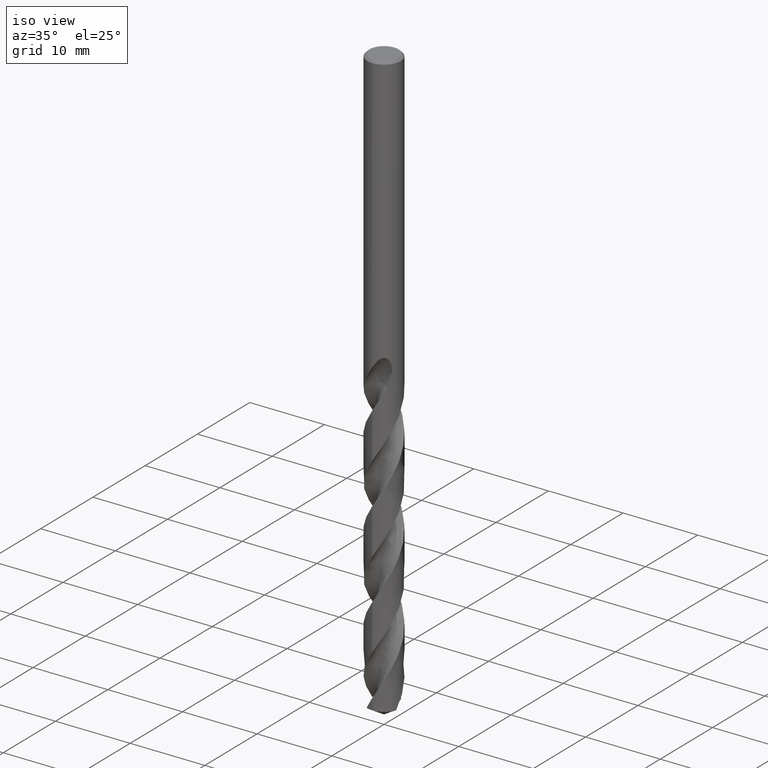
[diagram: clean part render]
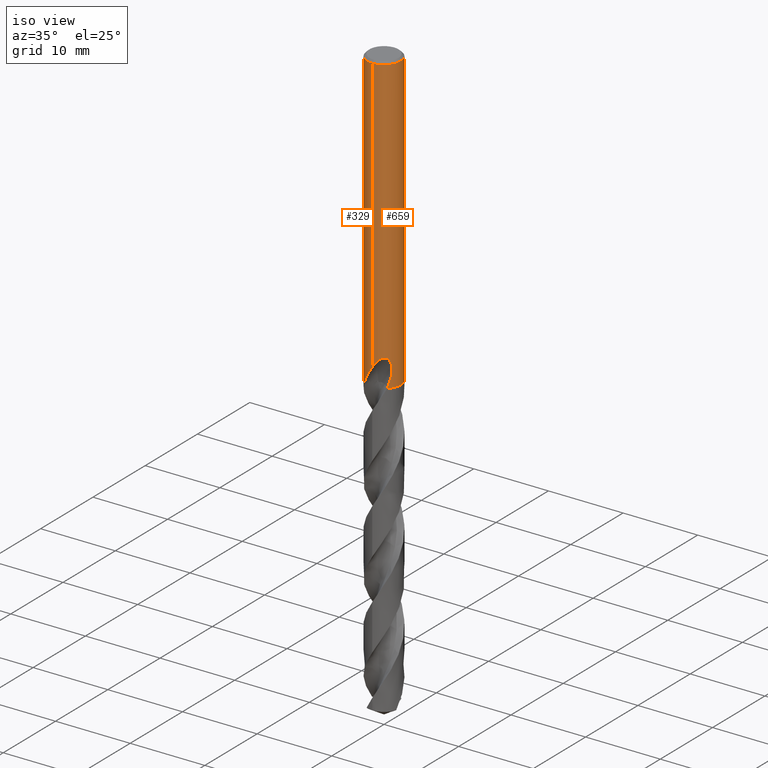
[diagram: same view with one multi-face feature highlighted, each face labeled with its STEP entity id]
A machine part, iso view. The highlighted faces form ONE feature: a constant-radius fillet chain: 2 tangent blend faces with common blend radius 2.25 mm. The faces share edges in the B-rep.
Their STEP definitions:
[1] entity #659 (Cylinder):
#275=VERTEX_POINT('',#774);
#283=VERTEX_POINT('',#782);
#317=VERTEX_POINT('',#821);
#319=EDGE_CURVE('',#373,#633,#823,.T.);
#337=EDGE_CURVE('',#633,#283,#842,.T.);
#349=EDGE_CURVE('',#649,#483,#855,.T.);
#365=EDGE_CURVE('',#317,#499,#874,.T.);
#373=VERTEX_POINT('',#882);
#473=EDGE_CURVE('',#317,#283,#993,.T.);
#479=EDGE_CURVE('',#275,#555,#999,.T.);
#483=VERTEX_POINT('',#1003);
#489=VERTEX_POINT('',#1009);
#499=VERTEX_POINT('',#1020);
#507=VERTEX_POINT('',#1029);
#555=VERTEX_POINT('',#1084);
#571=VERTEX_POINT('',#1101);
#579=EDGE_CURVE('',#625,#695,#1109,.T.);
#599=EDGE_CURVE('',#571,#489,#1130,.T.);
#625=VERTEX_POINT('',#1156);
#633=VERTEX_POINT('',#1165);
#637=EDGE_CURVE('',#489,#649,#1169,.T.);
#645=EDGE_CURVE('',#571,#555,#1178,.T.);
#649=VERTEX_POINT('',#1182);
#659=ADVANCED_FACE('',(#1192),#1193,.T.);
#667=EDGE_CURVE('',#737,#373,#1201,.T.);
#677=EDGE_CURVE('',#507,#499,#1212,.T.);
#681=EDGE_CURVE('',#483,#737,#1216,.T.);
#695=VERTEX_POINT('',#1231);
#725=EDGE_CURVE('',#275,#695,#1265,.T.);
#731=EDGE_CURVE('',#507,#625,#1271,.T.);
#737=VERTEX_POINT('',#1278);
#774=CARTESIAN_POINT('',(1.43136267377216,1.73600141017564,-39.5));
#782=CARTESIAN_POINT('',(-2.60338784749601E-016,2.25,-24.0232688117743));
#821=CARTESIAN_POINT('',(0.0,2.25,-0.300000000000001));
#823=B_SPLINE_CURVE_WITH_KNOTS('',3,(#1567,#1568,#1569,#1570,#1571,#1572,#1573,#1574),.UNSPECIFIED.,.F.,.F.,(4,2,2,4),(0.649712332100866,1.29942466420173,1.61810612988606,1.9367875955704),.UNSPECIFIED.);
#842=B_SPLINE_CURVE_WITH_KNOTS('',3,(#1768,#1769,#1770,#1771,#1772,#1773,#1774,#1775,#1776,#1777,#1778,#1779,#1780,#1781,#1782,#1783,#1784,#1785,#1786,#1787,#1788,#1789,#1790,#1791,#1792,#1793,#1794),.UNSPECIFIED.,.F.,.F.,(4,2,3,2,2,2,2,2,2,2,2,2,4),(-0.546607847444609,-0.273303923722305,0.0,0.273303923722304,0.546607847444609,0.822641546125594,1.09867524480658,1.36979270276528,1.64091016072398,1.91347018473955,2.18603020875512,2.45859023277069,2.73115025678626),.UNSPECIFIED.);
#855=LINE('',#2010,#2011);
#874=CIRCLE('',#2956,2.25);
#882=CARTESIAN_POINT('',(1.33721006514658,1.8095218268014,-23.5150484364821));
#993=LINE('',#5269,#5270);
#999=B_SPLINE_CURVE_WITH_KNOTS('',3,(#5283,#5284,#5285,#5286,#5287,#5288,#5289,#5290,#5291,#5292,#5293,#5294,#5295,#5296,#5297,#5298,#5299,#5300,#5301,#5302,#5303,#5304,#5305,#5306,#5307,#5308,#5309,#5310),.UNSPECIFIED.,.F.,.F.,(4,2,2,2,2,2,2,2,2,2,2,2,2,4),(0.0,1.09873860719058,1.70032724122028,2.24576012679961,2.87974206185534,3.64102664172238,4.2985927367928,4.59742188277697,4.81587481356782,5.02262489786682,5.28494431308133,5.66876617143089,6.21438731212965,6.83439627799228),.UNSPECIFIED.);
#1003=CARTESIAN_POINT('',(0.873560781758956,2.07349742236943,-25.7587351791531));
#1009=CARTESIAN_POINT('',(0.29010312703583,2.23121943691875,-25.9998328990228));
#1020=CARTESIAN_POINT('',(2.75536429610035E-016,-2.25,-0.300000000000001));
#1029=CARTESIAN_POINT('',(7.30664518418158E-013,-2.25,-37.1132946603122));
#1084=CARTESIAN_POINT('',(-7.34439276701884E-013,2.25,-37.1132946603121));
#1101=CARTESIAN_POINT('',(1.0146208194845E-016,2.25,-26.0310253601033));
#1109=B_SPLINE_CURVE_WITH_KNOTS('',3,(#6582,#6583,#6584,#6585),.UNSPECIFIED.,.F.,.F.,(4,4),(0.0,1.28785848250902),.UNSPECIFIED.);
#1130=B_SPLINE_CURVE_WITH_KNOTS('',3,(#6641,#6642,#6643,#6644,#6645,#6646,#6647,#6648,#6649,#6650,#6651,#6652,#6653,#6654),.UNSPECIFIED.,.F.,.F.,(4,2,2,2,2,2,4),(5.8188043051646,6.47172323101303,6.793197426277,7.11467162154097,7.43614581680495,7.75762001206892,8.07630150693072),.UNSPECIFIED.);
#1156=CARTESIAN_POINT('',(1.8306948674076,-1.30807350804436,-38.2729444868824));
#1165=CARTESIAN_POINT('',(0.799431726384364,2.10319017562609,-23.000000276873));
#1169=ELLIPSE('',#7144,6.85798779008199,2.25);
#1178=LINE('',#7158,#7159);
#1182=CARTESIAN_POINT('',(0.873560781758957,2.07349742236943,-24.3198931596091));
#1192=FACE_OUTER_BOUND('',#7191,.T.);
#1193=CYLINDRICAL_SURFACE('',#7192,2.25);
#1201=LINE('',#7201,#7202);
#1212=LINE('',#7223,#7224);
#1216=B_SPLINE_CURVE_WITH_KNOTS('',3,(#7230,#7231,#7232,#7233,#7234,#7235,#7236,#7237),.UNSPECIFIED.,.F.,.F.,(4,2,2,4),(8.39495916946687,8.71364062523192,9.03232208099696,9.6820343889696),.UNSPECIFIED.);
#1231=CARTESIAN_POINT('',(1.5652433351914,-1.61632710230291,-39.5));
#1265=CIRCLE('',#7858,2.25);
#1271=B_SPLINE_CURVE_WITH_KNOTS('',3,(#7869,#7870,#7871,#7872,#7873,#7874,#7875,#7876,#7877,#7878,#7879,#7880,#7881,#7882,#7883,#7884,#7885,#7886,#7887,#7888,#7889,#7890,#7891,#7892,#7893,#7894,#7895,#7896),.UNSPECIFIED.,.F.,.F.,(4,2,2,2,2,2,2,2,2,2,2,2,2,4),(0.0,1.09873860719059,1.70032724122022,2.24576012679936,2.8797420618548,3.64102664172145,4.29859273679149,4.5974218827755,4.81587481356614,5.02262489786494,5.2849443130793,5.66876617142966,6.21438731213107,6.83439627799646),.UNSPECIFIED.);
#1278=CARTESIAN_POINT('',(1.33721006514658,1.8095218268014,-25.2901657003257));
#1567=CARTESIAN_POINT('',(1.47140564821631,1.70219429513706,-23.7675920493255));
#1568=CARTESIAN_POINT('',(1.38742563480083,1.77478787368662,-23.5692487337174));
#1569=CARTESIAN_POINT('',(1.26410506832779,1.86851974593059,-23.3915153298318));
#1570=CARTESIAN_POINT('',(1.05250269066504,1.99027446904671,-23.1803312242413));
#1571=CARTESIAN_POINT('',(0.973477294263315,2.03070602687884,-23.1142428921012));
#1572=CARTESIAN_POINT('',(0.799821776511324,2.1051627338037,-22.9963083449594));
#1573=CARTESIAN_POINT('',(0.705178954734118,2.1391493291031,-22.94445649404));
#1574=CARTESIAN_POINT('',(0.605379405940458,2.16702925104005,-22.9023003194506));
#1768=CARTESIAN_POINT('',(0.666243563490138,2.14909737194664,-22.8147208348016));
#1769=CARTESIAN_POINT('',(0.72900241462786,2.12964144539424,-22.8778258411664));
#1770=CARTESIAN_POINT('',(0.783817425528482,2.10942552696666,-22.9577757356647));
#1771=CARTESIAN_POINT('',(0.857038179259723,2.08075261772318,-23.1340897828637));
#1772=CARTESIAN_POINT('',(0.875400981188567,2.0727211877467,-23.2305407046793));
#1773=CARTESIAN_POINT('',(0.875400981188567,2.0727211877467,-23.3216420125868));
#1774=CARTESIAN_POINT('',(0.875400981188567,2.0727211877467,-23.4127433204942));
#1775=CARTESIAN_POINT('',(0.857038179259723,2.08075261772318,-23.5091942423098));
#1776=CARTESIAN_POINT('',(0.783817425528484,2.10942552696666,-23.6855082895089));
#1777=CARTESIAN_POINT('',(0.729002414627861,2.12964144539424,-23.7654581840072));
#1778=CARTESIAN_POINT('',(0.60285787341817,2.1687476253875,-23.892298493089));
#1779=CARTESIAN_POINT('',(0.522544385979573,2.19034330344267,-23.9477717877875));
#1780=CARTESIAN_POINT('',(0.345309446343115,2.22517815225459,-24.0219052787708));
#1781=CARTESIAN_POINT('',(0.248314704747703,2.23814786696158,-24.0405166027747));
#1782=CARTESIAN_POINT('',(0.0663728539059954,2.25083580709205,-24.0405166027747));
#1783=CARTESIAN_POINT('',(-0.0298590851834042,2.2515432247463,-24.0224955086508));
#1784=CARTESIAN_POINT('',(-0.206684418648593,2.24223549374829,-23.9493466177248));
#1785=CARTESIAN_POINT('',(-0.287300419256653,2.23251123793688,-23.894236745528));
#1786=CARTESIAN_POINT('',(-0.414871948783266,2.21236829732551,-23.7671046595414));
#1787=CARTESIAN_POINT('',(-0.470335817886408,2.20061734057659,-23.68639061848));
#1788=CARTESIAN_POINT('',(-0.544083791614044,2.18355337414944,-23.5091069120264));
#1789=CARTESIAN_POINT('',(-0.562348199187247,2.17859232140179,-23.4124953539253));
#1790=CARTESIAN_POINT('',(-0.562348199187247,2.17859232140179,-23.2307886712483));
#1791=CARTESIAN_POINT('',(-0.544083791614045,2.18355337414944,-23.1341771131472));
#1792=CARTESIAN_POINT('',(-0.470335817886412,2.20061734057659,-22.9568934066936));
#1793=CARTESIAN_POINT('',(-0.414871948783266,2.21236829732551,-22.8761793656322));
#1794=CARTESIAN_POINT('',(-0.350916938130237,2.222466490756,-22.8124446597476));
#2010=CARTESIAN_POINT('',(0.873560781758957,2.07349742236943,-25.0393141693811));
#2011=VECTOR('',#8107,1.0);
#2956=AXIS2_PLACEMENT_3D('',#8139,#8140,#8141);
#5269=CARTESIAN_POINT('',(-2.75536429610035E-016,2.25,-33.75));
#5270=VECTOR('',#8286,1.0);
#5283=CARTESIAN_POINT('',(1.43136267377216,1.73600141017564,-39.5));
#5284=CARTESIAN_POINT('',(1.28312873777984,1.85822281029782,-39.1881909072164));
#5285=CARTESIAN_POINT('',(1.11288998647289,1.96676828375243,-38.8973021761395));
#5286=CARTESIAN_POINT('',(0.816045871666982,2.09995717355597,-38.4111345861413));
#5287=CARTESIAN_POINT('',(0.70904717762064,2.1383332259239,-38.2397705703247));
#5288=CARTESIAN_POINT('',(0.501830893636301,2.19570474163595,-37.9079191876957));
#5289=CARTESIAN_POINT('',(0.402527279903659,2.21597407087677,-37.7489608533979));
#5290=CARTESIAN_POINT('',(0.187522511687092,2.24520364730681,-37.4062921702253));
#5291=CARTESIAN_POINT('',(0.0700123382926666,2.25203477563045,-37.2198815867088));
#5292=CARTESIAN_POINT('',(-0.190908195668414,2.24640397432085,-36.821222099812));
#5293=CARTESIAN_POINT('',(-0.345635084948162,2.22933771923741,-36.5943819274339));
#5294=CARTESIAN_POINT('',(-0.643557106069269,2.16065069878065,-36.2211359661234));
#5295=CARTESIAN_POINT('',(-0.807994726015906,2.10851447896987,-36.0394770781376));
#5296=CARTESIAN_POINT('',(-1.05709932510989,1.98809325994921,-35.869065224286));
#5297=CARTESIAN_POINT('',(-1.1397103397158,1.94254704634187,-35.8268773965555));
#5298=CARTESIAN_POINT('',(-1.28447251130307,1.84876615579682,-35.7944881159742));
#5299=CARTESIAN_POINT('',(-1.34385161508647,1.80605496680631,-35.7939012048726));
#5300=CARTESIAN_POINT('',(-1.45445167379546,1.71807809431004,-35.8223218404913));
#5301=CARTESIAN_POINT('',(-1.50282394018617,1.67558575437789,-35.8489552815177));
#5302=CARTESIAN_POINT('',(-1.60126618042201,1.58246308410701,-35.9322761367855));
#5303=CARTESIAN_POINT('',(-1.6468105311783,1.53420329130331,-35.9937920939589));
#5304=CARTESIAN_POINT('',(-1.74010036581755,1.42882471706473,-36.1622385159456));
#5305=CARTESIAN_POINT('',(-1.78468853662007,1.37144037883794,-36.2871772914603));
#5306=CARTESIAN_POINT('',(-1.86852069863241,1.25623491873982,-36.636720089612));
#5307=CARTESIAN_POINT('',(-1.89881822933791,1.20717859686982,-36.8856531757932));
#5308=CARTESIAN_POINT('',(-1.91813108658371,1.17628596664791,-37.480574765147));
#5309=CARTESIAN_POINT('',(-1.90436912783274,1.20496379013409,-37.8539063032268));
#5310=CARTESIAN_POINT('',(-1.8306948674076,1.30807350804436,-38.2729444868824));
#6582=CARTESIAN_POINT('',(1.83069486746021,-1.30807350797072,-38.2729444869114));
#6583=CARTESIAN_POINT('',(1.75845185666812,-1.40918014170427,-38.6838520238249));
#6584=CARTESIAN_POINT('',(1.67144403474377,-1.51348285937078,-39.0971708682542));
#6585=CARTESIAN_POINT('',(1.56524333519139,-1.61632710230291,-39.5));
#6641=CARTESIAN_POINT('',(-1.5282408223732,1.65135701434672,-25.0373614253105));
#6642=CARTESIAN_POINT('',(-1.44462014694137,1.72874323994424,-25.2349517416232));
#6643=CARTESIAN_POINT('',(-1.32213559227532,1.82808047409474,-25.4118195330294));
#6644=CARTESIAN_POINT('',(-1.1118044138689,1.95781469062196,-25.6225880765766));
#6645=CARTESIAN_POINT('',(-1.03300320928262,2.00113344478605,-25.6887878295332));
#6646=CARTESIAN_POINT('',(-0.859618454374922,2.08151070309828,-25.8070919330088));
#6647=CARTESIAN_POINT('',(-0.765021624060809,2.11853274638762,-25.8592015892787));
#6648=CARTESIAN_POINT('',(-0.565189186642227,2.18036701972567,-25.9440841973397));
#6649=CARTESIAN_POINT('',(-0.459734659825423,2.20521487166055,-25.976926643835));
#6650=CARTESIAN_POINT('',(-0.244899252875617,2.23927509334912,-26.0205304620026));
#6651=CARTESIAN_POINT('',(-0.135511720584324,2.24847046333673,-26.0312723335086));
#6652=CARTESIAN_POINT('',(0.0778565557195722,2.25116027135023,-26.0312723335086));
#6653=CARTESIAN_POINT('',(0.186541656707251,2.24484609721969,-26.0207125637108));
#6654=CARTESIAN_POINT('',(0.293471096833456,2.23077894810834,-25.9991576773016));
#7144=AXIS2_PLACEMENT_3D('',#8424,#8425,#8426);
#7158=CARTESIAN_POINT('',(-2.75536429610035E-016,2.25,-33.75));
#7159=VECTOR('',#8437,1.0);
#7191=EDGE_LOOP('',(#8440,#8441,#8442,#8443,#8444,#8445,#8446,#8447,#8448,#8449,#8450,#8451,#8452,#8453,#8454));
#7192=AXIS2_PLACEMENT_3D('',#8455,#8456,#8457);
#7201=CARTESIAN_POINT('',(1.33721006514658,1.8095218268014,-24.4026070684039));
#7202=VECTOR('',#8458,1.0);
#7223=CARTESIAN_POINT('',(2.75536429610035E-016,-2.25,-33.75));
#7224=VECTOR('',#8467,1.0);
#7230=CARTESIAN_POINT('',(0.605379429036997,2.16702924458782,-25.902913800906));
#7231=CARTESIAN_POINT('',(0.705178974517275,2.13914932242981,-25.8607576276132));
#7232=CARTESIAN_POINT('',(0.799821793120995,2.10516272736294,-25.808905778307));
#7233=CARTESIAN_POINT('',(0.973477305046846,2.03070602157448,-25.6909712348262));
#7234=CARTESIAN_POINT('',(1.05250269879519,1.9902744646445,-25.6248829047334));
#7235=CARTESIAN_POINT('',(1.2641050685345,1.86851974524931,-25.413698806406));
#7236=CARTESIAN_POINT('',(1.38742563042075,1.77478787682544,-25.2359654088544));
#7237=CARTESIAN_POINT('',(1.47140564070596,1.70219430162913,-25.0376221002613));
#7858=AXIS2_PLACEMENT_3D('',#8534,#8535,#8536);
#7869=CARTESIAN_POINT('',(-1.43136267377215,-1.73600141017564,-39.5));
#7870=CARTESIAN_POINT('',(-1.28312873777983,-1.85822281029782,-39.1881909072164));
#7871=CARTESIAN_POINT('',(-1.11288998647288,-1.96676828375243,-38.8973021761395));
#7872=CARTESIAN_POINT('',(-0.816045871666997,-2.09995717355596,-38.4111345861413));
#7873=CARTESIAN_POINT('',(-0.709047177620676,-2.13833322592389,-38.2397705703248));
#7874=CARTESIAN_POINT('',(-0.501830893636294,-2.19570474163595,-37.9079191876956));
#7875=CARTESIAN_POINT('',(-0.402527279903647,-2.21597407087677,-37.7489608533979));
#7876=CARTESIAN_POINT('',(-0.187522511687113,-2.24520364730681,-37.4062921702253));
#7877=CARTESIAN_POINT('',(-0.070012338292671,-2.25203477563045,-37.2198815867089));
#7878=CARTESIAN_POINT('',(0.190908195668414,-2.24640397432085,-36.821222099812));
#7879=CARTESIAN_POINT('',(0.345635084948164,-2.22933771923741,-36.5943819274339));
#7880=CARTESIAN_POINT('',(0.643557106069263,-2.16065069878065,-36.2211359661234));
#7881=CARTESIAN_POINT('',(0.807994726015903,-2.10851447896987,-36.0394770781376));
#7882=CARTESIAN_POINT('',(1.05709932510989,-1.98809325994921,-35.869065224286));
#7883=CARTESIAN_POINT('',(1.1397103397158,-1.94254704634187,-35.8268773965555));
#7884=CARTESIAN_POINT('',(1.28447251130304,-1.84876615579684,-35.7944881159742));
#7885=CARTESIAN_POINT('',(1.34385161508646,-1.80605496680632,-35.7939012048726));
#7886=CARTESIAN_POINT('',(1.45445167379548,-1.71807809431004,-35.8223218404913));
#7887=CARTESIAN_POINT('',(1.50282394018619,-1.67558575437787,-35.8489552815178));
#7888=CARTESIAN_POINT('',(1.601266180422,-1.58246308410702,-35.9322761367855));
#7889=CARTESIAN_POINT('',(1.64681053117828,-1.53420329130333,-35.9937920939588));
#7890=CARTESIAN_POINT('',(1.74010036581772,-1.42882471706455,-36.1622385159459));
#7891=CARTESIAN_POINT('',(1.78468853662018,-1.3714403788378,-36.2871772914607));
#7892=CARTESIAN_POINT('',(1.86852069863239,-1.25623491873984,-36.6367200896119));
#7893=CARTESIAN_POINT('',(1.89881822933791,-1.20717859686982,-36.8856531757931));
#7894=CARTESIAN_POINT('',(1.91813108658371,-1.17628596664791,-37.4805747651469));
#7895=CARTESIAN_POINT('',(1.90436912783274,-1.20496379013408,-37.8539063032268));
#7896=CARTESIAN_POINT('',(1.8306948674076,-1.30807350804436,-38.2729444868824));
#8107=DIRECTION('',(0.0,0.0,-1.0));
#8139=CARTESIAN_POINT('',(0.0,0.0,-0.300000000000001));
#8140=DIRECTION('',(0.0,0.0,-1.0));
#8141=DIRECTION('',(0.0,1.0,0.0));
#8286=DIRECTION('',(0.0,0.0,-1.0));
#8424=CARTESIAN_POINT('',(0.0,0.0,-26.8351219173269));
#8425=DIRECTION('',(0.944648353914092,0.0,-0.328084573619969));
#8426=DIRECTION('',(0.328084573619968,-0.0,0.944648353914092));
#8437=DIRECTION('',(0.0,0.0,-1.0));
#8440=ORIENTED_EDGE('',*,*,#473,.F.);
#8441=ORIENTED_EDGE('',*,*,#365,.T.);
#8442=ORIENTED_EDGE('',*,*,#677,.F.);
#8443=ORIENTED_EDGE('',*,*,#731,.T.);
#8444=ORIENTED_EDGE('',*,*,#579,.T.);
#8445=ORIENTED_EDGE('',*,*,#725,.F.);
#8446=ORIENTED_EDGE('',*,*,#479,.T.);
#8447=ORIENTED_EDGE('',*,*,#645,.F.);
#8448=ORIENTED_EDGE('',*,*,#599,.T.);
#8449=ORIENTED_EDGE('',*,*,#637,.T.);
#8450=ORIENTED_EDGE('',*,*,#349,.T.);
#8451=ORIENTED_EDGE('',*,*,#681,.T.);
#8452=ORIENTED_EDGE('',*,*,#667,.T.);
#8453=ORIENTED_EDGE('',*,*,#319,.T.);
#8454=ORIENTED_EDGE('',*,*,#337,.T.);
#8455=CARTESIAN_POINT('',(0.0,0.0,-33.75));
#8456=DIRECTION('',(-0.0,-0.0,1.0));
#8457=DIRECTION('',(0.0,1.0,0.0));
#8458=DIRECTION('',(-0.0,-0.0,1.0));
#8467=DIRECTION('',(-0.0,-0.0,1.0));
#8534=CARTESIAN_POINT('',(0.0,0.0,-39.5));
#8535=DIRECTION('',(0.0,0.0,-1.0));
#8536=DIRECTION('',(0.0,1.0,0.0));
[2] entity #329 (Cylinder):
#283=VERTEX_POINT('',#782);
#287=VERTEX_POINT('',#787);
#317=VERTEX_POINT('',#821);
#321=EDGE_CURVE('',#671,#557,#825,.T.);
#329=ADVANCED_FACE('',(#833),#834,.T.);
#383=EDGE_CURVE('',#555,#429,#893,.T.);
#385=VERTEX_POINT('',#895);
#387=VERTEX_POINT('',#897);
#395=EDGE_CURVE('',#387,#385,#907,.T.);
#429=VERTEX_POINT('',#943);
#473=EDGE_CURVE('',#317,#283,#993,.T.);
#499=VERTEX_POINT('',#1020);
#507=VERTEX_POINT('',#1029);
#515=EDGE_CURVE('',#283,#387,#1038,.T.);
#517=EDGE_CURVE('',#499,#317,#1040,.T.);
#551=EDGE_CURVE('',#557,#623,#1080,.T.);
#555=VERTEX_POINT('',#1084);
#557=VERTEX_POINT('',#1086);
#565=EDGE_CURVE('',#685,#507,#1095,.T.);
#571=VERTEX_POINT('',#1101);
#595=EDGE_CURVE('',#287,#571,#1125,.T.);
#603=EDGE_CURVE('',#623,#287,#1134,.T.);
#605=EDGE_CURVE('',#429,#651,#1136,.T.);
#623=VERTEX_POINT('',#1154);
#645=EDGE_CURVE('',#571,#555,#1178,.T.);
#651=VERTEX_POINT('',#1184);
#671=VERTEX_POINT('',#1205);
#677=EDGE_CURVE('',#507,#499,#1212,.T.);
#685=VERTEX_POINT('',#1221);
#703=EDGE_CURVE('',#385,#671,#1241,.T.);
#733=EDGE_CURVE('',#685,#651,#1273,.T.);
#782=CARTESIAN_POINT('',(-2.60338784749601E-016,2.25,-24.0232688117743));
#787=CARTESIAN_POINT('',(-1.337052752443,1.80963806800824,-25.3720803908795));
#821=CARTESIAN_POINT('',(0.0,2.25,-0.300000000000001));
#825=B_SPLINE_CURVE_WITH_KNOTS('',3,(#1577,#1578,#1579,#1580,#1581,#1582,#1583,#1584,#1585,#1586,#1587,#1588,#1589,#1590,#1591,#1592,#1593,#1594,#1595,#1596),.UNSPECIFIED.,.F.,.F.,(4,2,2,2,2,2,2,2,2,4),(3.42585481594111,3.65338780111599,3.88092078629086,4.10845377146573,4.56351974181548,5.0131408462006,5.23795139839316,5.46276195058572,5.69438435227659,5.92600675396746),.UNSPECIFIED.);
#833=FACE_OUTER_BOUND('',#1754,.T.);
#834=CYLINDRICAL_SURFACE('',#1755,2.25);
#893=B_SPLINE_CURVE_WITH_KNOTS('',3,(#3423,#3424,#3425,#3426,#3427,#3428,#3429,#3430,#3431,#3432,#3433,#3434,#3435,#3436,#3437,#3438,#3439,#3440,#3441,#3442,#3443,#3444,#3445,#3446,#3447,#3448,#3449,#3450),.UNSPECIFIED.,.F.,.F.,(4,2,2,2,2,2,2,2,2,2,2,2,2,4),(0.0,1.09873860719058,1.70032724122028,2.24576012679961,2.87974206185534,3.64102664172238,4.2985927367928,4.59742188277697,4.81587481356782,5.02262489786682,5.28494431308133,5.66876617143089,6.21438731212965,6.83439627799228),.UNSPECIFIED.);
#895=CARTESIAN_POINT('',(-0.562333990228013,2.17859598903382,-23.3171221986971));
#897=CARTESIAN_POINT('',(-0.486378944383047,2.19680120230776,-23.6432837483006));
#907=B_SPLINE_CURVE_WITH_KNOTS('',3,(#3467,#3468,#3469,#3470,#3471,#3472,#3473,#3474,#3475,#3476,#3477,#3478,#3479,#3480,#3481,#3482,#3483,#3484,#3485,#3486,#3487,#3488,#3489,#3490,#3491,#3492,#3493),.UNSPECIFIED.,.F.,.F.,(4,2,3,2,2,2,2,2,2,2,2,2,4),(-0.546607847444609,-0.273303923722305,0.0,0.273303923722304,0.546607847444609,0.822641546125594,1.09867524480658,1.36979270276528,1.64091016072398,1.91347018473955,2.18603020875512,2.45859023277069,2.73115025678626),.UNSPECIFIED.);
#943=CARTESIAN_POINT('',(-1.8306948674076,1.30807350804436,-38.2729444868824));
#993=LINE('',#5269,#5270);
#1020=CARTESIAN_POINT('',(2.75536429610035E-016,-2.25,-0.300000000000001));
#1029=CARTESIAN_POINT('',(7.30664518418158E-013,-2.25,-37.1132946603122));
#1038=B_SPLINE_CURVE_WITH_KNOTS('',3,(#5724,#5725,#5726,#5727,#5728,#5729,#5730,#5731,#5732,#5733,#5734,#5735,#5736,#5737,#5738,#5739,#5740,#5741,#5742,#5743,#5744,#5745,#5746,#5747,#5748,#5749,#5750),.UNSPECIFIED.,.F.,.F.,(4,2,3,2,2,2,2,2,2,2,2,2,4),(-0.546607847444609,-0.273303923722305,0.0,0.273303923722304,0.546607847444609,0.822641546125594,1.09867524480658,1.36979270276528,1.64091016072398,1.91347018473955,2.18603020875512,2.45859023277069,2.73115025678626),.UNSPECIFIED.);
#1040=CIRCLE('',#5753,2.25);
#1080=LINE('',#6333,#6334);
#1084=CARTESIAN_POINT('',(-7.34439276701884E-013,2.25,-37.1132946603121));
#1086=CARTESIAN_POINT('',(-5.89297921147403E-017,2.25,-24.5000801551881));
#1095=B_SPLINE_CURVE_WITH_KNOTS('',3,(#6534,#6535,#6536,#6537,#6538,#6539,#6540,#6541,#6542,#6543,#6544,#6545,#6546,#6547,#6548,#6549,#6550,#6551,#6552,#6553,#6554,#6555,#6556,#6557,#6558,#6559,#6560,#6561),.UNSPECIFIED.,.F.,.F.,(4,2,2,2,2,2,2,2,2,2,2,2,2,4),(0.0,1.09873860719059,1.70032724122022,2.24576012679936,2.8797420618548,3.64102664172145,4.29859273679149,4.5974218827755,4.81587481356614,5.02262489786494,5.2849443130793,5.66876617142966,6.21438731213107,6.83439627799646),.UNSPECIFIED.);
#1101=CARTESIAN_POINT('',(1.0146208194845E-016,2.25,-26.0310253601033));
#1125=B_SPLINE_CURVE_WITH_KNOTS('',3,(#6622,#6623,#6624,#6625,#6626,#6627,#6628,#6629,#6630,#6631,#6632,#6633,#6634,#6635),.UNSPECIFIED.,.F.,.F.,(4,2,2,2,2,2,4),(5.8188043051646,6.47172323101303,6.793197426277,7.11467162154097,7.43614581680495,7.75762001206892,8.07630150693072),.UNSPECIFIED.);
#1134=ELLIPSE('',#6679,2.50858897209644,2.25);
#1136=B_SPLINE_CURVE_WITH_KNOTS('',3,(#6682,#6683,#6684,#6685),.UNSPECIFIED.,.F.,.F.,(4,4),(0.0,1.28785848250887),.UNSPECIFIED.);
#1154=CARTESIAN_POINT('',(-2.75536429610035E-016,2.25,-24.7128911336578));
#1178=LINE('',#7158,#7159);
#1184=CARTESIAN_POINT('',(-1.5652433351914,1.61632710230291,-39.5));
#1205=CARTESIAN_POINT('',(-1.0350734039088,1.99777952950786,-23.3171221986971));
#1212=LINE('',#7223,#7224);
#1221=CARTESIAN_POINT('',(-1.43136267377216,-1.73600141017564,-39.5));
#1241=CIRCLE('',#7608,2.25);
#1273=CIRCLE('',#7899,2.25);
#1577=CARTESIAN_POINT('',(-1.01234947628301,2.00939009101506,-23.0953600541769));
#1578=CARTESIAN_POINT('',(-1.02770092007692,2.00165589054464,-23.1724894045153));
#1579=CARTESIAN_POINT('',(-1.03510901790186,1.99776107707059,-23.2504575323412));
#1580=CARTESIAN_POINT('',(-1.03510901790186,1.99776107707059,-23.4021461891244));
#1581=CARTESIAN_POINT('',(-1.02770092007692,2.00165589054464,-23.4801143169503));
#1582=CARTESIAN_POINT('',(-0.996998032489108,2.01712429148548,-23.634373017627));
#1583=CARTESIAN_POINT('',(-0.973715210347612,2.02867191592313,-23.7106685745503));
#1584=CARTESIAN_POINT('',(-0.882118904777836,2.07096348867386,-23.9292562403689));
#1585=CARTESIAN_POINT('',(-0.790927506284491,2.10928189883354,-24.0611642338891));
#1586=CARTESIAN_POINT('',(-0.582342420899574,2.17605722946912,-24.2684639523736));
#1587=CARTESIAN_POINT('',(-0.450764232970377,2.20924809367864,-24.358715993071));
#1588=CARTESIAN_POINT('',(-0.233034089170198,2.23909836723642,-24.4490962373762));
#1589=CARTESIAN_POINT('',(-0.157102512143277,2.24581540020094,-24.4720212027126));
#1590=CARTESIAN_POINT('',(-0.00399482882458294,2.251300080497,-24.5021611160728));
#1591=CARTESIAN_POINT('',(0.0731830989520529,2.25005772495401,-24.5093686300866));
#1592=CARTESIAN_POINT('',(0.224998105780096,2.24005286665103,-24.5093686300866));
#1593=CARTESIAN_POINT('',(0.303878460056984,2.23077979608065,-24.5017262978516));
#1594=CARTESIAN_POINT('',(0.459334948555842,2.20402632064121,-24.4704076756946));
#1595=CARTESIAN_POINT('',(0.535915456300973,2.18655491968901,-24.446745405568));
#1596=CARTESIAN_POINT('',(0.608774737177599,2.16607786549199,-24.4159323882126));
#1754=EDGE_LOOP('',(#8071,#8072,#8073,#8074,#8075,#8076,#8077,#8078,#8079,#8080,#8081,#8082,#8083,#8084,#8085));
#1755=AXIS2_PLACEMENT_3D('',#8086,#8087,#8088);
#3423=CARTESIAN_POINT('',(1.43136267377216,1.73600141017564,-39.5));
#3424=CARTESIAN_POINT('',(1.28312873777984,1.85822281029782,-39.1881909072164));
#3425=CARTESIAN_POINT('',(1.11288998647289,1.96676828375243,-38.8973021761395));
#3426=CARTESIAN_POINT('',(0.816045871666982,2.09995717355597,-38.4111345861413));
#3427=CARTESIAN_POINT('',(0.70904717762064,2.1383332259239,-38.2397705703247));
#3428=CARTESIAN_POINT('',(0.501830893636301,2.19570474163595,-37.9079191876957));
#3429=CARTESIAN_POINT('',(0.402527279903659,2.21597407087677,-37.7489608533979));
#3430=CARTESIAN_POINT('',(0.187522511687092,2.24520364730681,-37.4062921702253));
#3431=CARTESIAN_POINT('',(0.0700123382926666,2.25203477563045,-37.2198815867088));
#3432=CARTESIAN_POINT('',(-0.190908195668414,2.24640397432085,-36.821222099812));
#3433=CARTESIAN_POINT('',(-0.345635084948162,2.22933771923741,-36.5943819274339));
#3434=CARTESIAN_POINT('',(-0.643557106069269,2.16065069878065,-36.2211359661234));
#3435=CARTESIAN_POINT('',(-0.807994726015906,2.10851447896987,-36.0394770781376));
#3436=CARTESIAN_POINT('',(-1.05709932510989,1.98809325994921,-35.869065224286));
#3437=CARTESIAN_POINT('',(-1.1397103397158,1.94254704634187,-35.8268773965555));
#3438=CARTESIAN_POINT('',(-1.28447251130307,1.84876615579682,-35.7944881159742));
#3439=CARTESIAN_POINT('',(-1.34385161508647,1.80605496680631,-35.7939012048726));
#3440=CARTESIAN_POINT('',(-1.45445167379546,1.71807809431004,-35.8223218404913));
#3441=CARTESIAN_POINT('',(-1.50282394018617,1.67558575437789,-35.8489552815177));
#3442=CARTESIAN_POINT('',(-1.60126618042201,1.58246308410701,-35.9322761367855));
#3443=CARTESIAN_POINT('',(-1.6468105311783,1.53420329130331,-35.9937920939589));
#3444=CARTESIAN_POINT('',(-1.74010036581755,1.42882471706473,-36.1622385159456));
#3445=CARTESIAN_POINT('',(-1.78468853662007,1.37144037883794,-36.2871772914603));
#3446=CARTESIAN_POINT('',(-1.86852069863241,1.25623491873982,-36.636720089612));
#3447=CARTESIAN_POINT('',(-1.89881822933791,1.20717859686982,-36.8856531757932));
#3448=CARTESIAN_POINT('',(-1.91813108658371,1.17628596664791,-37.480574765147));
#3449=CARTESIAN_POINT('',(-1.90436912783274,1.20496379013409,-37.8539063032268));
#3450=CARTESIAN_POINT('',(-1.8306948674076,1.30807350804436,-38.2729444868824));
#3467=CARTESIAN_POINT('',(0.666243563490138,2.14909737194664,-22.8147208348016));
#3468=CARTESIAN_POINT('',(0.72900241462786,2.12964144539424,-22.8778258411664));
#3469=CARTESIAN_POINT('',(0.783817425528482,2.10942552696666,-22.9577757356647));
#3470=CARTESIAN_POINT('',(0.857038179259723,2.08075261772318,-23.1340897828637));
#3471=CARTESIAN_POINT('',(0.875400981188567,2.0727211877467,-23.2305407046793));
#3472=CARTESIAN_POINT('',(0.875400981188567,2.0727211877467,-23.3216420125868));
#3473=CARTESIAN_POINT('',(0.875400981188567,2.0727211877467,-23.4127433204942));
#3474=CARTESIAN_POINT('',(0.857038179259723,2.08075261772318,-23.5091942423098));
#3475=CARTESIAN_POINT('',(0.783817425528484,2.10942552696666,-23.6855082895089));
#3476=CARTESIAN_POINT('',(0.729002414627861,2.12964144539424,-23.7654581840072));
#3477=CARTESIAN_POINT('',(0.60285787341817,2.1687476253875,-23.892298493089));
#3478=CARTESIAN_POINT('',(0.522544385979573,2.19034330344267,-23.9477717877875));
#3479=CARTESIAN_POINT('',(0.345309446343115,2.22517815225459,-24.0219052787708));
#3480=CARTESIAN_POINT('',(0.248314704747703,2.23814786696158,-24.0405166027747));
#3481=CARTESIAN_POINT('',(0.0663728539059954,2.25083580709205,-24.0405166027747));
#3482=CARTESIAN_POINT('',(-0.0298590851834042,2.2515432247463,-24.0224955086508));
#3483=CARTESIAN_POINT('',(-0.206684418648593,2.24223549374829,-23.9493466177248));
#3484=CARTESIAN_POINT('',(-0.287300419256653,2.23251123793688,-23.894236745528));
#3485=CARTESIAN_POINT('',(-0.414871948783266,2.21236829732551,-23.7671046595414));
#3486=CARTESIAN_POINT('',(-0.470335817886408,2.20061734057659,-23.68639061848));
#3487=CARTESIAN_POINT('',(-0.544083791614044,2.18355337414944,-23.5091069120264));
#3488=CARTESIAN_POINT('',(-0.562348199187247,2.17859232140179,-23.4124953539253));
#3489=CARTESIAN_POINT('',(-0.562348199187247,2.17859232140179,-23.2307886712483));
#3490=CARTESIAN_POINT('',(-0.544083791614045,2.18355337414944,-23.1341771131472));
#3491=CARTESIAN_POINT('',(-0.470335817886412,2.20061734057659,-22.9568934066936));
#3492=CARTESIAN_POINT('',(-0.414871948783266,2.21236829732551,-22.8761793656322));
#3493=CARTESIAN_POINT('',(-0.350916938130237,2.222466490756,-22.8124446597476));
#5269=CARTESIAN_POINT('',(-2.75536429610035E-016,2.25,-33.75));
#5270=VECTOR('',#8286,1.0);
#5724=CARTESIAN_POINT('',(0.666243563490138,2.14909737194664,-22.8147208348016));
#5725=CARTESIAN_POINT('',(0.72900241462786,2.12964144539424,-22.8778258411664));
#5726=CARTESIAN_POINT('',(0.783817425528482,2.10942552696666,-22.9577757356647));
#5727=CARTESIAN_POINT('',(0.857038179259723,2.08075261772318,-23.1340897828637));
#5728=CARTESIAN_POINT('',(0.875400981188567,2.0727211877467,-23.2305407046793));
#5729=CARTESIAN_POINT('',(0.875400981188567,2.0727211877467,-23.3216420125868));
#5730=CARTESIAN_POINT('',(0.875400981188567,2.0727211877467,-23.4127433204942));
#5731=CARTESIAN_POINT('',(0.857038179259723,2.08075261772318,-23.5091942423098));
#5732=CARTESIAN_POINT('',(0.783817425528484,2.10942552696666,-23.6855082895089));
#5733=CARTESIAN_POINT('',(0.729002414627861,2.12964144539424,-23.7654581840072));
#5734=CARTESIAN_POINT('',(0.60285787341817,2.1687476253875,-23.892298493089));
#5735=CARTESIAN_POINT('',(0.522544385979573,2.19034330344267,-23.9477717877875));
#5736=CARTESIAN_POINT('',(0.345309446343115,2.22517815225459,-24.0219052787708));
#5737=CARTESIAN_POINT('',(0.248314704747703,2.23814786696158,-24.0405166027747));
#5738=CARTESIAN_POINT('',(0.0663728539059954,2.25083580709205,-24.0405166027747));
#5739=CARTESIAN_POINT('',(-0.0298590851834042,2.2515432247463,-24.0224955086508));
#5740=CARTESIAN_POINT('',(-0.206684418648593,2.24223549374829,-23.9493466177248));
#5741=CARTESIAN_POINT('',(-0.287300419256653,2.23251123793688,-23.894236745528));
#5742=CARTESIAN_POINT('',(-0.414871948783266,2.21236829732551,-23.7671046595414));
#5743=CARTESIAN_POINT('',(-0.470335817886408,2.20061734057659,-23.68639061848));
#5744=CARTESIAN_POINT('',(-0.544083791614044,2.18355337414944,-23.5091069120264));
#5745=CARTESIAN_POINT('',(-0.562348199187247,2.17859232140179,-23.4124953539253));
#5746=CARTESIAN_POINT('',(-0.562348199187247,2.17859232140179,-23.2307886712483));
#5747=CARTESIAN_POINT('',(-0.544083791614045,2.18355337414944,-23.1341771131472));
#5748=CARTESIAN_POINT('',(-0.470335817886412,2.20061734057659,-22.9568934066936));
#5749=CARTESIAN_POINT('',(-0.414871948783266,2.21236829732551,-22.8761793656322));
#5750=CARTESIAN_POINT('',(-0.350916938130237,2.222466490756,-22.8124446597476));
#5753=AXIS2_PLACEMENT_3D('',#8318,#8319,#8320);
#6333=CARTESIAN_POINT('',(-2.75536429610035E-016,2.25,-33.75));
#6334=VECTOR('',#8377,1.0);
#6534=CARTESIAN_POINT('',(-1.43136267377215,-1.73600141017564,-39.5));
#6535=CARTESIAN_POINT('',(-1.28312873777983,-1.85822281029782,-39.1881909072164));
#6536=CARTESIAN_POINT('',(-1.11288998647288,-1.96676828375243,-38.8973021761395));
#6537=CARTESIAN_POINT('',(-0.816045871666997,-2.09995717355596,-38.4111345861413));
#6538=CARTESIAN_POINT('',(-0.709047177620676,-2.13833322592389,-38.2397705703248));
#6539=CARTESIAN_POINT('',(-0.501830893636294,-2.19570474163595,-37.9079191876956));
#6540=CARTESIAN_POINT('',(-0.402527279903647,-2.21597407087677,-37.7489608533979));
#6541=CARTESIAN_POINT('',(-0.187522511687113,-2.24520364730681,-37.4062921702253));
#6542=CARTESIAN_POINT('',(-0.070012338292671,-2.25203477563045,-37.2198815867089));
#6543=CARTESIAN_POINT('',(0.190908195668414,-2.24640397432085,-36.821222099812));
#6544=CARTESIAN_POINT('',(0.345635084948164,-2.22933771923741,-36.5943819274339));
#6545=CARTESIAN_POINT('',(0.643557106069263,-2.16065069878065,-36.2211359661234));
#6546=CARTESIAN_POINT('',(0.807994726015903,-2.10851447896987,-36.0394770781376));
#6547=CARTESIAN_POINT('',(1.05709932510989,-1.98809325994921,-35.869065224286));
#6548=CARTESIAN_POINT('',(1.1397103397158,-1.94254704634187,-35.8268773965555));
#6549=CARTESIAN_POINT('',(1.28447251130304,-1.84876615579684,-35.7944881159742));
#6550=CARTESIAN_POINT('',(1.34385161508646,-1.80605496680632,-35.7939012048726));
#6551=CARTESIAN_POINT('',(1.45445167379548,-1.71807809431004,-35.8223218404913));
#6552=CARTESIAN_POINT('',(1.50282394018619,-1.67558575437787,-35.8489552815178));
#6553=CARTESIAN_POINT('',(1.601266180422,-1.58246308410702,-35.9322761367855));
#6554=CARTESIAN_POINT('',(1.64681053117828,-1.53420329130333,-35.9937920939588));
#6555=CARTESIAN_POINT('',(1.74010036581772,-1.42882471706455,-36.1622385159459));
#6556=CARTESIAN_POINT('',(1.78468853662018,-1.3714403788378,-36.2871772914607));
#6557=CARTESIAN_POINT('',(1.86852069863239,-1.25623491873984,-36.6367200896119));
#6558=CARTESIAN_POINT('',(1.89881822933791,-1.20717859686982,-36.8856531757931));
#6559=CARTESIAN_POINT('',(1.91813108658371,-1.17628596664791,-37.4805747651469));
#6560=CARTESIAN_POINT('',(1.90436912783274,-1.20496379013408,-37.8539063032268));
#6561=CARTESIAN_POINT('',(1.8306948674076,-1.30807350804436,-38.2729444868824));
#6622=CARTESIAN_POINT('',(-1.5282408223732,1.65135701434672,-25.0373614253105));
#6623=CARTESIAN_POINT('',(-1.44462014694137,1.72874323994424,-25.2349517416232));
#6624=CARTESIAN_POINT('',(-1.32213559227532,1.82808047409474,-25.4118195330294));
#6625=CARTESIAN_POINT('',(-1.1118044138689,1.95781469062196,-25.6225880765766));
#6626=CARTESIAN_POINT('',(-1.03300320928262,2.00113344478605,-25.6887878295332));
#6627=CARTESIAN_POINT('',(-0.859618454374922,2.08151070309828,-25.8070919330088));
#6628=CARTESIAN_POINT('',(-0.765021624060809,2.11853274638762,-25.8592015892787));
#6629=CARTESIAN_POINT('',(-0.565189186642227,2.18036701972567,-25.9440841973397));
#6630=CARTESIAN_POINT('',(-0.459734659825423,2.20521487166055,-25.976926643835));
#6631=CARTESIAN_POINT('',(-0.244899252875617,2.23927509334912,-26.0205304620026));
#6632=CARTESIAN_POINT('',(-0.135511720584324,2.24847046333673,-26.0312723335086));
#6633=CARTESIAN_POINT('',(0.0778565557195722,2.25116027135023,-26.0312723335086));
#6634=CARTESIAN_POINT('',(0.186541656707251,2.24484609721969,-26.0207125637108));
#6635=CARTESIAN_POINT('',(0.293471096833456,2.23077894810834,-25.9991576773016));
#6679=AXIS2_PLACEMENT_3D('',#8404,#8405,#8406);
#6682=CARTESIAN_POINT('',(-1.83069486746021,1.30807350797072,-38.2729444869114));
#6683=CARTESIAN_POINT('',(-1.75845185666813,1.40918014170426,-38.6838520238249));
#6684=CARTESIAN_POINT('',(-1.67144403474378,1.51348285937077,-39.0971708682542));
#6685=CARTESIAN_POINT('',(-1.56524333519139,1.61632710230291,-39.5));
#7158=CARTESIAN_POINT('',(-2.75536429610035E-016,2.25,-33.75));
#7159=VECTOR('',#8437,1.0);
#7223=CARTESIAN_POINT('',(2.75536429610035E-016,-2.25,-33.75));
#7224=VECTOR('',#8467,1.0);
#7608=AXIS2_PLACEMENT_3D('',#8496,#8497,#8498);
#7899=AXIS2_PLACEMENT_3D('',#8539,#8540,#8541);
#8071=ORIENTED_EDGE('',*,*,#473,.T.);
#8072=ORIENTED_EDGE('',*,*,#515,.T.);
#8073=ORIENTED_EDGE('',*,*,#395,.T.);
#8074=ORIENTED_EDGE('',*,*,#703,.T.);
#8075=ORIENTED_EDGE('',*,*,#321,.T.);
#8076=ORIENTED_EDGE('',*,*,#551,.T.);
#8077=ORIENTED_EDGE('',*,*,#603,.T.);
#8078=ORIENTED_EDGE('',*,*,#595,.T.);
#8079=ORIENTED_EDGE('',*,*,#645,.T.);
#8080=ORIENTED_EDGE('',*,*,#383,.T.);
#8081=ORIENTED_EDGE('',*,*,#605,.T.);
#8082=ORIENTED_EDGE('',*,*,#733,.F.);
#8083=ORIENTED_EDGE('',*,*,#565,.T.);
#8084=ORIENTED_EDGE('',*,*,#677,.T.);
#8085=ORIENTED_EDGE('',*,*,#517,.T.);
#8086=CARTESIAN_POINT('',(0.0,0.0,-33.75));
#8087=DIRECTION('',(-0.0,-0.0,1.0));
#8088=DIRECTION('',(0.0,1.0,0.0));
#8286=DIRECTION('',(0.0,0.0,-1.0));
#8318=CARTESIAN_POINT('',(0.0,0.0,-0.300000000000001));
#8319=DIRECTION('',(0.0,0.0,-1.0));
#8320=DIRECTION('',(0.0,1.0,0.0));
#8377=DIRECTION('',(0.0,0.0,-1.0));
#8404=CARTESIAN_POINT('',(0.0,0.0,-24.7128911336578));
#8405=DIRECTION('',(-0.442195774284071,0.0,0.896918556617774));
#8406=DIRECTION('',(0.896918556617774,-0.0,0.442195774284071));
#8437=DIRECTION('',(0.0,0.0,-1.0));
#8467=DIRECTION('',(-0.0,-0.0,1.0));
#8496=CARTESIAN_POINT('',(0.0,0.0,-23.3171221986971));
#8497=DIRECTION('',(0.0,-0.0,1.0));
#8498=DIRECTION('',(0.0,1.0,0.0));
#8539=CARTESIAN_POINT('',(0.0,0.0,-39.5));
#8540=DIRECTION('',(0.0,0.0,-1.0));
#8541=DIRECTION('',(0.0,1.0,0.0));